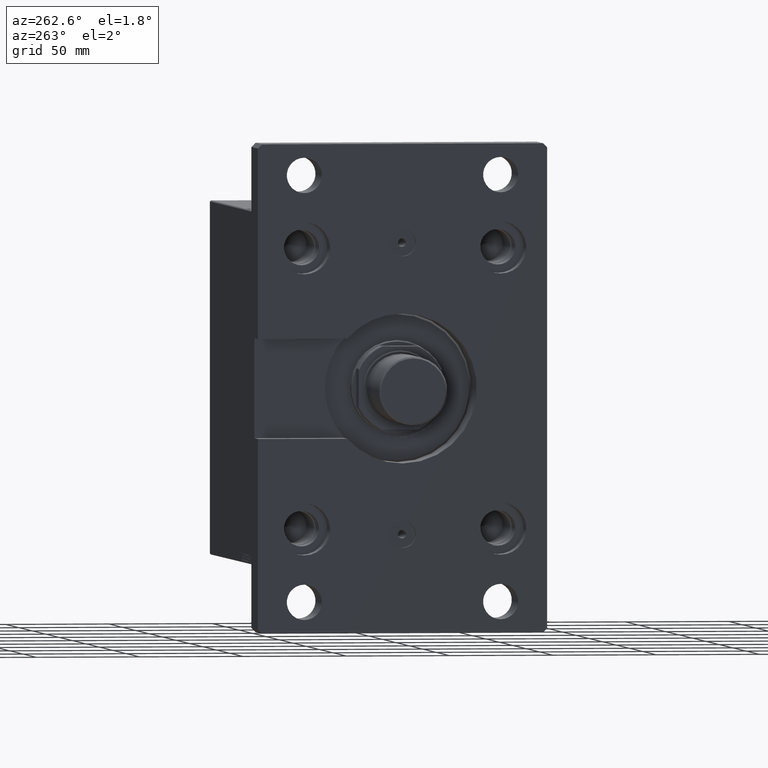
[diagram: clean part render]
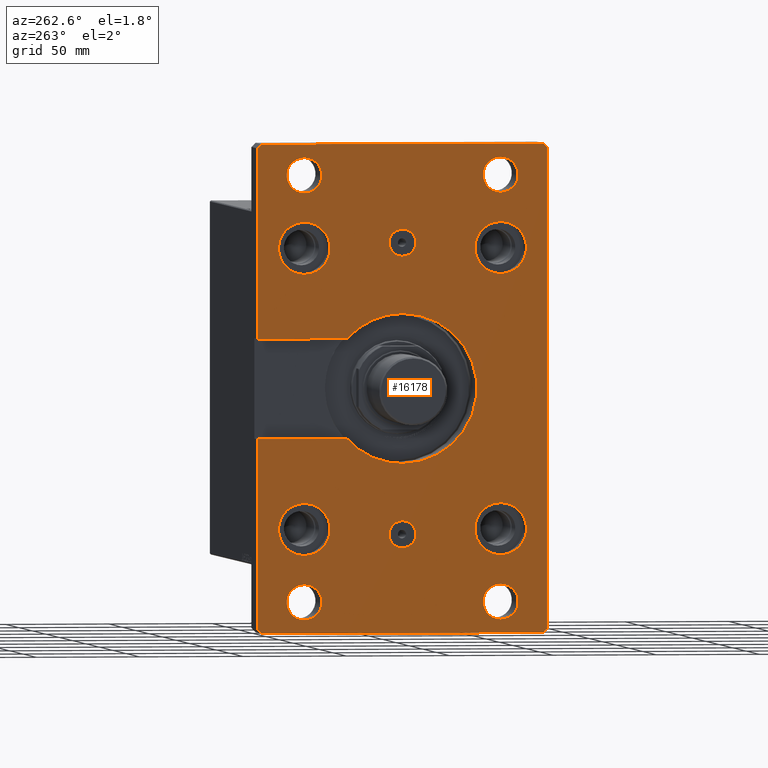
[diagram: same view with one face highlighted and labeled with its STEP entity id]
A machine part, auxiliary view. The second image highlights one B-rep face of the part: STEP entity #16178.
In plain terms, the highlighted planar face has unit normal (-1, 0, 0).
Its self-contained STEP definition (entity closure, byte-faithful):
#265 = LINE ( 'NONE', #15077, #33046 ) ;
#306 = LINE ( 'NONE', #26238, #8871 ) ;
#308 = DIRECTION ( 'NONE',  ( -3.965082230804130220E-16, 1.000000000000000000, -0.000000000000000000 ) ) ;
#411 = DIRECTION ( 'NONE',  ( 0.000000000000000000, 0.000000000000000000, 1.000000000000000000 ) ) ;
#446 = CARTESIAN_POINT ( 'NONE',  ( -80.00000000000000000, -47.50000000000000000, 24.00000000000000000 ) ) ;
#546 = CARTESIAN_POINT ( 'NONE',  ( 117.4999999999999858, 70.00000000000000000, 24.00000000000000000 ) ) ;
#554 = EDGE_CURVE ( 'NONE', #45017, #11655, #18734, .T. ) ;
#855 = AXIS2_PLACEMENT_3D ( 'NONE', #2356, #12815, #19841 ) ;
#973 = CARTESIAN_POINT ( 'NONE',  ( -70.00000000000000000, 0.000000000000000000, 24.00000000000000000 ) ) ;
#982 = CIRCLE ( 'NONE', #23412, 8.499999999999992895 ) ;
#1465 = CARTESIAN_POINT ( 'NONE',  ( -70.00000000000000000, 0.000000000000000000, 24.00000000000000000 ) ) ;
#1836 = DIRECTION ( 'NONE',  ( -0.7071067811865474617, -0.7071067811865474617, -0.000000000000000000 ) ) ;
#2017 = LINE ( 'NONE', #12950, #7054 ) ;
#2057 = FACE_BOUND ( 'NONE', #38197, .T. ) ;
#2175 = EDGE_CURVE ( 'NONE', #10622, #44782, #7720, .T. ) ;
#2296 = FACE_BOUND ( 'NONE', #35320, .T. ) ;
#2302 = CARTESIAN_POINT ( 'NONE',  ( -63.50000000000000000, 0.000000000000000000, 24.00000000000000000 ) ) ;
#2356 = CARTESIAN_POINT ( 'NONE',  ( -67.50000000000000000, -47.50000000000000000, 24.00000000000000000 ) ) ;
#2394 = VERTEX_POINT ( 'NONE', #446 ) ;
#2750 = CARTESIAN_POINT ( 'NONE',  ( 0.000000000000000000, 0.000000000000000000, 24.00000000000000000 ) ) ;
#2954 = DIRECTION ( 'NONE',  ( -0.7071067811865401342, 0.7071067811865549002, -0.000000000000000000 ) ) ;
#3041 = EDGE_CURVE ( 'NONE', #39036, #33081, #11492, .T. ) ;
#3063 = CARTESIAN_POINT ( 'NONE',  ( -117.5000000000000000, -70.00000000000000000, 24.00000000000000000 ) ) ;
#3593 = CIRCLE ( 'NONE', #19167, 12.49999999999999645 ) ;
#3726 = DIRECTION ( 'NONE',  ( 1.000000000000000000, 0.000000000000000000, 0.000000000000000000 ) ) ;
#3753 = EDGE_LOOP ( 'NONE', ( #40631, #8618 ) ) ;
#4460 = VECTOR ( 'NONE', #34371, 1000.000000000000114 ) ;
#4619 = AXIS2_PLACEMENT_3D ( 'NONE', #973, #27154, #15544 ) ;
#4686 = CARTESIAN_POINT ( 'NONE',  ( -24.00000000000000000, 69.99999999999998579, 24.00000000000000000 ) ) ;
#5031 = AXIS2_PLACEMENT_3D ( 'NONE', #42918, #9917, #6033 ) ;
#5173 = VERTEX_POINT ( 'NONE', #14876 ) ;
#5925 = VERTEX_POINT ( 'NONE', #22971 ) ;
#6033 = DIRECTION ( 'NONE',  ( 1.000000000000000000, 0.000000000000000000, 0.000000000000000000 ) ) ;
#6053 = ORIENTED_EDGE ( 'NONE', *, *, #10064, .F. ) ;
#6080 = VERTEX_POINT ( 'NONE', #4686 ) ;
#6172 = VERTEX_POINT ( 'NONE', #25773 ) ;
#6189 = PLANE ( 'NONE',  #25078 ) ;
#6217 = DIRECTION ( 'NONE',  ( 1.000000000000000000, 0.000000000000000000, 0.000000000000000000 ) ) ;
#6233 = AXIS2_PLACEMENT_3D ( 'NONE', #10897, #26153, #14783 ) ;
#6347 = DIRECTION ( 'NONE',  ( -0.000000000000000000, 0.000000000000000000, 1.000000000000000000 ) ) ;
#6370 = VERTEX_POINT ( 'NONE', #32048 ) ;
#6388 = EDGE_CURVE ( 'NONE', #17479, #34792, #34055, .T. ) ;
#6433 = CIRCLE ( 'NONE', #28120, 36.00000000000000000 ) ;
#6511 = CARTESIAN_POINT ( 'NONE',  ( -94.00000000000000000, -47.50000000000000000, 24.00000000000000000 ) ) ;
#6631 = CARTESIAN_POINT ( 'NONE',  ( 67.50000000000000000, 47.50000000000000000, 24.00000000000000000 ) ) ;
#6649 = AXIS2_PLACEMENT_3D ( 'NONE', #44952, #18984, #34252 ) ;
#6722 = EDGE_LOOP ( 'NONE', ( #28149, #29146 ) ) ;
#6910 = CARTESIAN_POINT ( 'NONE',  ( -115.5000000000000426, -70.00000000000000000, 24.00000000000000000 ) ) ;
#7026 = AXIS2_PLACEMENT_3D ( 'NONE', #26110, #37762, #25627 ) ;
#7054 = VECTOR ( 'NONE', #19743, 1000.000000000000000 ) ;
#7086 = AXIS2_PLACEMENT_3D ( 'NONE', #9967, #36157, #10682 ) ;
#7087 = FACE_BOUND ( 'NONE', #30674, .T. ) ;
#7283 = EDGE_CURVE ( 'NONE', #6172, #28848, #37204, .T. ) ;
#7372 = DIRECTION ( 'NONE',  ( -1.000000000000000000, -0.000000000000000000, -0.000000000000000000 ) ) ;
#7373 = ORIENTED_EDGE ( 'NONE', *, *, #8528, .F. ) ;
#7445 = DIRECTION ( 'NONE',  ( -0.000000000000000000, 0.000000000000000000, 1.000000000000000000 ) ) ;
#7720 = CIRCLE ( 'NONE', #28618, 6.500000000000005329 ) ;
#7852 = VECTOR ( 'NONE', #1836, 1000.000000000000114 ) ;
#7865 = AXIS2_PLACEMENT_3D ( 'NONE', #34116, #411, #14982 ) ;
#7914 = VERTEX_POINT ( 'NONE', #21271 ) ;
#8000 = CARTESIAN_POINT ( 'NONE',  ( -110.9999999999999858, 47.50000000000000000, 24.00000000000000000 ) ) ;
#8089 = VERTEX_POINT ( 'NONE', #34931 ) ;
#8150 = ORIENTED_EDGE ( 'NONE', *, *, #12388, .T. ) ;
#8384 = DIRECTION ( 'NONE',  ( 1.000000000000000000, 0.000000000000000000, 0.000000000000000000 ) ) ;
#8528 = EDGE_CURVE ( 'NONE', #2394, #33280, #29480, .T. ) ;
#8618 = ORIENTED_EDGE ( 'NONE', *, *, #29097, .F. ) ;
#8871 = VECTOR ( 'NONE', #42258, 1000.000000000000000 ) ;
#8970 = CIRCLE ( 'NONE', #6649, 8.499999999999992895 ) ;
#9042 = CARTESIAN_POINT ( 'NONE',  ( 117.5000000000000284, -68.00000000000000000, 24.00000000000000000 ) ) ;
#9120 = ORIENTED_EDGE ( 'NONE', *, *, #41008, .F. ) ;
#9334 = EDGE_LOOP ( 'NONE', ( #10481, #17367 ) ) ;
#9396 = EDGE_CURVE ( 'NONE', #36055, #23435, #23431, .T. ) ;
#9402 = CARTESIAN_POINT ( 'NONE',  ( -115.5000000000000142, 70.00000000000000000, 24.00000000000000000 ) ) ;
#9528 = CARTESIAN_POINT ( 'NONE',  ( 0.000000000000000000, 0.000000000000000000, 24.00000000000000000 ) ) ;
#9612 = EDGE_CURVE ( 'NONE', #6080, #42632, #2017, .T. ) ;
#9832 = CARTESIAN_POINT ( 'NONE',  ( 0.000000000000000000, 0.000000000000000000, 24.00000000000000000 ) ) ;
#9917 = DIRECTION ( 'NONE',  ( -0.000000000000000000, 0.000000000000000000, 1.000000000000000000 ) ) ;
#9967 = CARTESIAN_POINT ( 'NONE',  ( 102.5000000000000000, 47.50000000000000000, 24.00000000000000000 ) ) ;
#10015 = DIRECTION ( 'NONE',  ( 1.000000000000000000, 0.000000000000000000, 0.000000000000000000 ) ) ;
#10064 = EDGE_CURVE ( 'NONE', #42624, #44608, #11346, .T. ) ;
#10182 = ORIENTED_EDGE ( 'NONE', *, *, #9612, .F. ) ;
#10264 = CARTESIAN_POINT ( 'NONE',  ( 55.00000000000000711, 47.50000000000000000, 24.00000000000000000 ) ) ;
#10343 = EDGE_CURVE ( 'NONE', #34602, #8089, #23336, .T. ) ;
#10456 = AXIS2_PLACEMENT_3D ( 'NONE', #27387, #19643, #12611 ) ;
#10481 = ORIENTED_EDGE ( 'NONE', *, *, #7283, .F. ) ;
#10574 = DIRECTION ( 'NONE',  ( 0.000000000000000000, 0.000000000000000000, 1.000000000000000000 ) ) ;
#10582 = CARTESIAN_POINT ( 'NONE',  ( 92.75000000000041211, -92.74999999999977263, 24.00000000000000000 ) ) ;
#10622 = VERTEX_POINT ( 'NONE', #17044 ) ;
#10682 = DIRECTION ( 'NONE',  ( 1.000000000000000000, 0.000000000000000000, 0.000000000000000000 ) ) ;
#10897 = CARTESIAN_POINT ( 'NONE',  ( 102.5000000000000000, -47.50000000000000000, 24.00000000000000000 ) ) ;
#11011 = LINE ( 'NONE', #26504, #21419 ) ;
#11024 = CARTESIAN_POINT ( 'NONE',  ( -36.00000000000000000, 4.408728476930470856E-15, 24.00000000000000000 ) ) ;
#11035 = EDGE_CURVE ( 'NONE', #25785, #20208, #43525, .T. ) ;
#11059 = DIRECTION ( 'NONE',  ( 0.7071067811865451302, 0.7071067811865500152, -0.000000000000000000 ) ) ;
#11346 = LINE ( 'NONE', #26122, #41932 ) ;
#11361 = LINE ( 'NONE', #41677, #27845 ) ;
#11492 = CIRCLE ( 'NONE', #25421, 8.499999999999992895 ) ;
#11560 = DIRECTION ( 'NONE',  ( 1.000000000000000000, 0.000000000000000000, 0.000000000000000000 ) ) ;
#11655 = VERTEX_POINT ( 'NONE', #34005 ) ;
#11920 = DIRECTION ( 'NONE',  ( 1.000000000000000000, 0.000000000000000000, 0.000000000000000000 ) ) ;
#12212 = EDGE_LOOP ( 'NONE', ( #37628, #7373 ) ) ;
#12326 = ORIENTED_EDGE ( 'NONE', *, *, #13260, .F. ) ;
#12354 = CARTESIAN_POINT ( 'NONE',  ( 94.00000000000000000, 47.50000000000000000, 24.00000000000000000 ) ) ;
#12388 = EDGE_CURVE ( 'NONE', #13503, #7914, #43824, .T. ) ;
#12395 = AXIS2_PLACEMENT_3D ( 'NONE', #39568, #6347, #15306 ) ;
#12611 = DIRECTION ( 'NONE',  ( 1.000000000000000000, 0.000000000000000000, 0.000000000000000000 ) ) ;
#12721 = DIRECTION ( 'NONE',  ( 1.000000000000000000, 0.000000000000000000, 0.000000000000000000 ) ) ;
#12736 = CIRCLE ( 'NONE', #5031, 8.499999999999992895 ) ;
#12815 = DIRECTION ( 'NONE',  ( 0.000000000000000000, 0.000000000000000000, 1.000000000000000000 ) ) ;
#12950 = CARTESIAN_POINT ( 'NONE',  ( -24.00000000000000000, 26.83281572999747411, 24.00000000000000000 ) ) ;
#12974 = ORIENTED_EDGE ( 'NONE', *, *, #17262, .F. ) ;
#13260 = EDGE_CURVE ( 'NONE', #20208, #25785, #982, .T. ) ;
#13477 = FACE_OUTER_BOUND ( 'NONE', #19006, .T. ) ;
#13503 = VERTEX_POINT ( 'NONE', #6910 ) ;
#13673 = DIRECTION ( 'NONE',  ( 1.000000000000000000, 0.000000000000000000, 0.000000000000000000 ) ) ;
#13854 = DIRECTION ( 'NONE',  ( 0.000000000000000000, 0.000000000000000000, 1.000000000000000000 ) ) ;
#13873 = EDGE_CURVE ( 'NONE', #28372, #39884, #6433, .T. ) ;
#14701 = VERTEX_POINT ( 'NONE', #10264 ) ;
#14783 = DIRECTION ( 'NONE',  ( 1.000000000000000000, 0.000000000000000000, 0.000000000000000000 ) ) ;
#14876 = CARTESIAN_POINT ( 'NONE',  ( 80.00000000000000000, 47.50000000000000000, 24.00000000000000000 ) ) ;
#14982 = DIRECTION ( 'NONE',  ( 1.000000000000000000, 0.000000000000000000, 0.000000000000000000 ) ) ;
#15077 = CARTESIAN_POINT ( 'NONE',  ( 92.75000000000122213, 92.74999999999927525, 24.00000000000000000 ) ) ;
#15100 = AXIS2_PLACEMENT_3D ( 'NONE', #15892, #22670, #8384 ) ;
#15225 = ORIENTED_EDGE ( 'NONE', *, *, #45184, .T. ) ;
#15265 = EDGE_LOOP ( 'NONE', ( #9120, #18643 ) ) ;
#15306 = DIRECTION ( 'NONE',  ( 1.000000000000000000, 0.000000000000000000, 0.000000000000000000 ) ) ;
#15544 = DIRECTION ( 'NONE',  ( 1.000000000000000000, 0.000000000000000000, 0.000000000000000000 ) ) ;
#15548 = DIRECTION ( 'NONE',  ( -0.000000000000000000, 0.000000000000000000, 1.000000000000000000 ) ) ;
#15788 = DIRECTION ( 'NONE',  ( 1.000000000000000000, 0.000000000000000000, 0.000000000000000000 ) ) ;
#15854 = CARTESIAN_POINT ( 'NONE',  ( 80.00000000000000000, -47.50000000000000000, 24.00000000000000000 ) ) ;
#15892 = CARTESIAN_POINT ( 'NONE',  ( 67.50000000000000000, 47.50000000000000000, 24.00000000000000000 ) ) ;
#16035 = ORIENTED_EDGE ( 'NONE', *, *, #45778, .T. ) ;
#16037 = EDGE_CURVE ( 'NONE', #44782, #10622, #26525, .T. ) ;
#16178 = ADVANCED_FACE ( 'NONE', ( #46459, #42825, #29388, #2057, #28244, #16848, #40308, #2296, #7087, #17087, #13477 ), #6189, .T. ) ;
#16299 = CIRCLE ( 'NONE', #6233, 8.499999999999992895 ) ;
#16586 = DIRECTION ( 'NONE',  ( -0.000000000000000000, 0.000000000000000000, 1.000000000000000000 ) ) ;
#16848 = FACE_BOUND ( 'NONE', #3753, .T. ) ;
#17044 = CARTESIAN_POINT ( 'NONE',  ( 63.50000000000000000, 7.960204194457791533E-16, 24.00000000000000000 ) ) ;
#17087 = FACE_BOUND ( 'NONE', #9334, .T. ) ;
#17163 = CARTESIAN_POINT ( 'NONE',  ( 115.4999999999999574, 70.00000000000000000, 24.00000000000000000 ) ) ;
#17262 = EDGE_CURVE ( 'NONE', #5173, #14701, #46688, .T. ) ;
#17363 = ORIENTED_EDGE ( 'NONE', *, *, #40317, .F. ) ;
#17364 = CIRCLE ( 'NONE', #43742, 36.00000000000000000 ) ;
#17367 = ORIENTED_EDGE ( 'NONE', *, *, #43918, .F. ) ;
#17479 = VERTEX_POINT ( 'NONE', #35365 ) ;
#17721 = CARTESIAN_POINT ( 'NONE',  ( -117.5000000000000000, -68.00000000000005684, 24.00000000000000000 ) ) ;
#18279 = CARTESIAN_POINT ( 'NONE',  ( -102.5000000000000000, 47.50000000000000000, 24.00000000000000000 ) ) ;
#18643 = ORIENTED_EDGE ( 'NONE', *, *, #47691, .F. ) ;
#18734 = LINE ( 'NONE', #546, #27020 ) ;
#18984 = DIRECTION ( 'NONE',  ( -0.000000000000000000, 0.000000000000000000, 1.000000000000000000 ) ) ;
#19006 = EDGE_LOOP ( 'NONE', ( #46057, #15225, #16035, #6053, #45863, #46267, #34462, #10182, #38240, #32282, #38673, #40350, #8150, #44811 ) ) ;
#19167 = AXIS2_PLACEMENT_3D ( 'NONE', #40451, #13854, #42973 ) ;
#19361 = CARTESIAN_POINT ( 'NONE',  ( -24.00000000000000000, 26.83281572999747411, 24.00000000000000000 ) ) ;
#19643 = DIRECTION ( 'NONE',  ( 0.000000000000000000, 0.000000000000000000, 1.000000000000000000 ) ) ;
#19743 = DIRECTION ( 'NONE',  ( -0.000000000000000000, -1.000000000000000000, -0.000000000000000000 ) ) ;
#19841 = DIRECTION ( 'NONE',  ( 1.000000000000000000, 0.000000000000000000, 0.000000000000000000 ) ) ;
#19909 = CARTESIAN_POINT ( 'NONE',  ( -117.5000000000000142, 68.00000000000000000, 24.00000000000000000 ) ) ;
#20208 = VERTEX_POINT ( 'NONE', #12354 ) ;
#20677 = AXIS2_PLACEMENT_3D ( 'NONE', #1465, #33975, #11920 ) ;
#21271 = CARTESIAN_POINT ( 'NONE',  ( 115.5000000000000426, -70.00000000000000000, 24.00000000000000000 ) ) ;
#21320 = DIRECTION ( 'NONE',  ( 0.000000000000000000, 0.000000000000000000, 1.000000000000000000 ) ) ;
#21419 = VECTOR ( 'NONE', #7372, 1000.000000000000000 ) ;
#21935 = CIRCLE ( 'NONE', #38969, 36.00000000000000000 ) ;
#22142 = DIRECTION ( 'NONE',  ( -0.000000000000000000, 0.000000000000000000, 1.000000000000000000 ) ) ;
#22422 = VERTEX_POINT ( 'NONE', #15854 ) ;
#22670 = DIRECTION ( 'NONE',  ( 0.000000000000000000, 0.000000000000000000, 1.000000000000000000 ) ) ;
#22698 = CARTESIAN_POINT ( 'NONE',  ( 102.5000000000000000, 47.50000000000000000, 24.00000000000000000 ) ) ;
#22971 = CARTESIAN_POINT ( 'NONE',  ( 55.00000000000000711, -47.50000000000000000, 24.00000000000000000 ) ) ;
#23153 = CARTESIAN_POINT ( 'NONE',  ( 24.00000000000000000, 69.99999999999998579, 24.00000000000000000 ) ) ;
#23283 = CIRCLE ( 'NONE', #855, 12.49999999999999645 ) ;
#23336 = CIRCLE ( 'NONE', #45838, 12.49999999999999645 ) ;
#23373 = CARTESIAN_POINT ( 'NONE',  ( -55.00000000000000711, 47.50000000000000000, 24.00000000000000000 ) ) ;
#23412 = AXIS2_PLACEMENT_3D ( 'NONE', #22698, #7445, #11560 ) ;
#23431 = LINE ( 'NONE', #41891, #7852 ) ;
#23435 = VERTEX_POINT ( 'NONE', #19909 ) ;
#24114 = EDGE_CURVE ( 'NONE', #6080, #36055, #11361, .T. ) ;
#24464 = DIRECTION ( 'NONE',  ( 1.000000000000000000, 0.000000000000000000, 0.000000000000000000 ) ) ;
#24601 = DIRECTION ( 'NONE',  ( -0.000000000000000000, 0.000000000000000000, 1.000000000000000000 ) ) ;
#24799 = AXIS2_PLACEMENT_3D ( 'NONE', #18279, #22142, #3726 ) ;
#24877 = EDGE_CURVE ( 'NONE', #6370, #37351, #42597, .T. ) ;
#25078 = AXIS2_PLACEMENT_3D ( 'NONE', #9832, #24601, #47841 ) ;
#25421 = AXIS2_PLACEMENT_3D ( 'NONE', #38795, #15548, #15788 ) ;
#25627 = DIRECTION ( 'NONE',  ( 1.000000000000000000, 0.000000000000000000, 0.000000000000000000 ) ) ;
#25693 = VECTOR ( 'NONE', #6217, 1000.000000000000000 ) ;
#25773 = CARTESIAN_POINT ( 'NONE',  ( -94.00000000000000000, 47.50000000000000000, 24.00000000000000000 ) ) ;
#25785 = VERTEX_POINT ( 'NONE', #43784 ) ;
#25940 = CIRCLE ( 'NONE', #10456, 12.49999999999999645 ) ;
#26088 = EDGE_CURVE ( 'NONE', #34792, #17479, #16299, .T. ) ;
#26110 = CARTESIAN_POINT ( 'NONE',  ( -67.50000000000000000, -47.50000000000000000, 24.00000000000000000 ) ) ;
#26122 = CARTESIAN_POINT ( 'NONE',  ( 24.00000000000000000, 69.99999999999998579, 24.00000000000000000 ) ) ;
#26153 = DIRECTION ( 'NONE',  ( -0.000000000000000000, 0.000000000000000000, 1.000000000000000000 ) ) ;
#26238 = CARTESIAN_POINT ( 'NONE',  ( -117.5000000000000142, 70.00000000000000000, 24.00000000000000000 ) ) ;
#26504 = CARTESIAN_POINT ( 'NONE',  ( -117.5000000000000142, 70.00000000000000000, 24.00000000000000000 ) ) ;
#26525 = CIRCLE ( 'NONE', #31158, 6.500000000000005329 ) ;
#26818 = CARTESIAN_POINT ( 'NONE',  ( 70.00000000000000000, 0.000000000000000000, 24.00000000000000000 ) ) ;
#27020 = VECTOR ( 'NONE', #308, 1000.000000000000000 ) ;
#27154 = DIRECTION ( 'NONE',  ( 0.000000000000000000, 0.000000000000000000, 1.000000000000000000 ) ) ;
#27387 = CARTESIAN_POINT ( 'NONE',  ( 67.50000000000000000, -47.50000000000000000, 24.00000000000000000 ) ) ;
#27845 = VECTOR ( 'NONE', #38260, 1000.000000000000000 ) ;
#27896 = EDGE_CURVE ( 'NONE', #33280, #2394, #23283, .T. ) ;
#28101 = ORIENTED_EDGE ( 'NONE', *, *, #26088, .F. ) ;
#28120 = AXIS2_PLACEMENT_3D ( 'NONE', #9528, #28190, #10015 ) ;
#28149 = ORIENTED_EDGE ( 'NONE', *, *, #16037, .F. ) ;
#28190 = DIRECTION ( 'NONE',  ( -0.000000000000000000, 0.000000000000000000, 1.000000000000000000 ) ) ;
#28206 = DIRECTION ( 'NONE',  ( -0.000000000000000000, 0.000000000000000000, 1.000000000000000000 ) ) ;
#28244 = FACE_BOUND ( 'NONE', #15265, .T. ) ;
#28372 = VERTEX_POINT ( 'NONE', #11024 ) ;
#28618 = AXIS2_PLACEMENT_3D ( 'NONE', #39757, #21320, #24464 ) ;
#28695 = EDGE_LOOP ( 'NONE', ( #41931, #36966 ) ) ;
#28848 = VERTEX_POINT ( 'NONE', #8000 ) ;
#29097 = EDGE_CURVE ( 'NONE', #8089, #34602, #41944, .T. ) ;
#29146 = ORIENTED_EDGE ( 'NONE', *, *, #2175, .F. ) ;
#29388 = FACE_BOUND ( 'NONE', #12212, .T. ) ;
#29480 = CIRCLE ( 'NONE', #7026, 12.49999999999999645 ) ;
#30674 = EDGE_LOOP ( 'NONE', ( #17363, #32792 ) ) ;
#30702 = DIRECTION ( 'NONE',  ( 0.000000000000000000, 0.000000000000000000, 1.000000000000000000 ) ) ;
#30714 = CARTESIAN_POINT ( 'NONE',  ( -55.00000000000000711, -47.50000000000000000, 24.00000000000000000 ) ) ;
#31158 = AXIS2_PLACEMENT_3D ( 'NONE', #26818, #30702, #42118 ) ;
#31180 = ORIENTED_EDGE ( 'NONE', *, *, #11035, .F. ) ;
#31371 = CARTESIAN_POINT ( 'NONE',  ( 0.000000000000000000, 0.000000000000000000, 24.00000000000000000 ) ) ;
#31546 = CARTESIAN_POINT ( 'NONE',  ( 110.9999999999999858, -47.50000000000000000, 24.00000000000000000 ) ) ;
#31813 = EDGE_LOOP ( 'NONE', ( #31180, #12326 ) ) ;
#32048 = CARTESIAN_POINT ( 'NONE',  ( -76.50000000000001421, 7.960204194457791533E-16, 24.00000000000000000 ) ) ;
#32084 = DIRECTION ( 'NONE',  ( 0.000000000000000000, 0.000000000000000000, 1.000000000000000000 ) ) ;
#32152 = CARTESIAN_POINT ( 'NONE',  ( -67.50000000000000000, 47.50000000000000000, 24.00000000000000000 ) ) ;
#32282 = ORIENTED_EDGE ( 'NONE', *, *, #9396, .T. ) ;
#32792 = ORIENTED_EDGE ( 'NONE', *, *, #3041, .F. ) ;
#33046 = VECTOR ( 'NONE', #2954, 1000.000000000000000 ) ;
#33081 = VERTEX_POINT ( 'NONE', #6511 ) ;
#33280 = VERTEX_POINT ( 'NONE', #30714 ) ;
#33703 = EDGE_CURVE ( 'NONE', #39884, #42624, #21935, .T. ) ;
#33975 = DIRECTION ( 'NONE',  ( 0.000000000000000000, 0.000000000000000000, 1.000000000000000000 ) ) ;
#34005 = CARTESIAN_POINT ( 'NONE',  ( 117.4999999999999858, 68.00000000000000000, 24.00000000000000000 ) ) ;
#34055 = CIRCLE ( 'NONE', #12395, 8.499999999999992895 ) ;
#34116 = CARTESIAN_POINT ( 'NONE',  ( -67.50000000000000000, 47.50000000000000000, 24.00000000000000000 ) ) ;
#34252 = DIRECTION ( 'NONE',  ( 1.000000000000000000, 0.000000000000000000, 0.000000000000000000 ) ) ;
#34371 = DIRECTION ( 'NONE',  ( 0.7071067811865474617, -0.7071067811865474617, 0.000000000000000000 ) ) ;
#34462 = ORIENTED_EDGE ( 'NONE', *, *, #39577, .F. ) ;
#34602 = VERTEX_POINT ( 'NONE', #23373 ) ;
#34792 = VERTEX_POINT ( 'NONE', #31546 ) ;
#34911 = VERTEX_POINT ( 'NONE', #17721 ) ;
#34931 = CARTESIAN_POINT ( 'NONE',  ( -80.00000000000000000, 47.50000000000000000, 24.00000000000000000 ) ) ;
#35005 = ORIENTED_EDGE ( 'NONE', *, *, #40717, .F. ) ;
#35082 = ORIENTED_EDGE ( 'NONE', *, *, #6388, .F. ) ;
#35320 = EDGE_LOOP ( 'NONE', ( #28101, #35082 ) ) ;
#35365 = CARTESIAN_POINT ( 'NONE',  ( 94.00000000000000000, -47.50000000000000000, 24.00000000000000000 ) ) ;
#35393 = CIRCLE ( 'NONE', #20677, 6.500000000000005329 ) ;
#36055 = VERTEX_POINT ( 'NONE', #9402 ) ;
#36157 = DIRECTION ( 'NONE',  ( -0.000000000000000000, 0.000000000000000000, 1.000000000000000000 ) ) ;
#36966 = ORIENTED_EDGE ( 'NONE', *, *, #24877, .F. ) ;
#37184 = CARTESIAN_POINT ( 'NONE',  ( 76.50000000000001421, 0.000000000000000000, 24.00000000000000000 ) ) ;
#37204 = CIRCLE ( 'NONE', #24799, 8.499999999999992895 ) ;
#37292 = DIRECTION ( 'NONE',  ( -0.000000000000000000, 1.000000000000000000, -0.000000000000000000 ) ) ;
#37351 = VERTEX_POINT ( 'NONE', #2302 ) ;
#37628 = ORIENTED_EDGE ( 'NONE', *, *, #27896, .F. ) ;
#37762 = DIRECTION ( 'NONE',  ( 0.000000000000000000, 0.000000000000000000, 1.000000000000000000 ) ) ;
#37799 = CARTESIAN_POINT ( 'NONE',  ( 24.00000000000000000, 26.83281572999747411, 24.00000000000000000 ) ) ;
#38197 = EDGE_LOOP ( 'NONE', ( #12974, #35005 ) ) ;
#38240 = ORIENTED_EDGE ( 'NONE', *, *, #24114, .T. ) ;
#38260 = DIRECTION ( 'NONE',  ( -1.000000000000000000, -0.000000000000000000, -0.000000000000000000 ) ) ;
#38673 = ORIENTED_EDGE ( 'NONE', *, *, #39898, .T. ) ;
#38795 = CARTESIAN_POINT ( 'NONE',  ( -102.5000000000000000, -47.50000000000000000, 24.00000000000000000 ) ) ;
#38969 = AXIS2_PLACEMENT_3D ( 'NONE', #2750, #28206, #46902 ) ;
#39036 = VERTEX_POINT ( 'NONE', #43927 ) ;
#39568 = CARTESIAN_POINT ( 'NONE',  ( 102.5000000000000000, -47.50000000000000000, 24.00000000000000000 ) ) ;
#39577 = EDGE_CURVE ( 'NONE', #42632, #28372, #17364, .T. ) ;
#39757 = CARTESIAN_POINT ( 'NONE',  ( 70.00000000000000000, 0.000000000000000000, 24.00000000000000000 ) ) ;
#39880 = VECTOR ( 'NONE', #11059, 1000.000000000000114 ) ;
#39884 = VERTEX_POINT ( 'NONE', #40576 ) ;
#39898 = EDGE_CURVE ( 'NONE', #23435, #34911, #306, .T. ) ;
#40308 = FACE_BOUND ( 'NONE', #31813, .T. ) ;
#40317 = EDGE_CURVE ( 'NONE', #33081, #39036, #12736, .T. ) ;
#40350 = ORIENTED_EDGE ( 'NONE', *, *, #47802, .T. ) ;
#40400 = LINE ( 'NONE', #10582, #39880 ) ;
#40451 = CARTESIAN_POINT ( 'NONE',  ( 67.50000000000000000, -47.50000000000000000, 24.00000000000000000 ) ) ;
#40491 = AXIS2_PLACEMENT_3D ( 'NONE', #6631, #32084, #13673 ) ;
#40576 = CARTESIAN_POINT ( 'NONE',  ( 36.00000000000000000, 0.000000000000000000, 24.00000000000000000 ) ) ;
#40598 = EDGE_CURVE ( 'NONE', #7914, #45017, #40400, .T. ) ;
#40631 = ORIENTED_EDGE ( 'NONE', *, *, #10343, .F. ) ;
#40717 = EDGE_CURVE ( 'NONE', #14701, #5173, #45332, .T. ) ;
#41008 = EDGE_CURVE ( 'NONE', #22422, #5925, #25940, .T. ) ;
#41183 = CARTESIAN_POINT ( 'NONE',  ( -92.75000000000002842, -92.75000000000002842, 24.00000000000000000 ) ) ;
#41677 = CARTESIAN_POINT ( 'NONE',  ( -117.5000000000000142, 70.00000000000000000, 24.00000000000000000 ) ) ;
#41891 = CARTESIAN_POINT ( 'NONE',  ( -92.75000000000002842, 92.75000000000002842, 24.00000000000000000 ) ) ;
#41931 = ORIENTED_EDGE ( 'NONE', *, *, #46174, .F. ) ;
#41932 = VECTOR ( 'NONE', #37292, 1000.000000000000000 ) ;
#41944 = CIRCLE ( 'NONE', #7865, 12.49999999999999645 ) ;
#42118 = DIRECTION ( 'NONE',  ( 1.000000000000000000, 0.000000000000000000, 0.000000000000000000 ) ) ;
#42258 = DIRECTION ( 'NONE',  ( 1.982541115402065110E-16, -1.000000000000000000, 0.000000000000000000 ) ) ;
#42597 = CIRCLE ( 'NONE', #4619, 6.500000000000005329 ) ;
#42624 = VERTEX_POINT ( 'NONE', #37799 ) ;
#42632 = VERTEX_POINT ( 'NONE', #19361 ) ;
#42825 = FACE_BOUND ( 'NONE', #6722, .T. ) ;
#42918 = CARTESIAN_POINT ( 'NONE',  ( -102.5000000000000000, -47.50000000000000000, 24.00000000000000000 ) ) ;
#42973 = DIRECTION ( 'NONE',  ( 1.000000000000000000, 0.000000000000000000, 0.000000000000000000 ) ) ;
#43525 = CIRCLE ( 'NONE', #7086, 8.499999999999992895 ) ;
#43742 = AXIS2_PLACEMENT_3D ( 'NONE', #31371, #16586, #12721 ) ;
#43784 = CARTESIAN_POINT ( 'NONE',  ( 110.9999999999999858, 47.50000000000000000, 24.00000000000000000 ) ) ;
#43824 = LINE ( 'NONE', #3063, #25693 ) ;
#43918 = EDGE_CURVE ( 'NONE', #28848, #6172, #8970, .T. ) ;
#43927 = CARTESIAN_POINT ( 'NONE',  ( -110.9999999999999858, -47.50000000000000000, 24.00000000000000000 ) ) ;
#44608 = VERTEX_POINT ( 'NONE', #23153 ) ;
#44782 = VERTEX_POINT ( 'NONE', #37184 ) ;
#44811 = ORIENTED_EDGE ( 'NONE', *, *, #40598, .T. ) ;
#44830 = LINE ( 'NONE', #41183, #4460 ) ;
#44952 = CARTESIAN_POINT ( 'NONE',  ( -102.5000000000000000, 47.50000000000000000, 24.00000000000000000 ) ) ;
#45017 = VERTEX_POINT ( 'NONE', #9042 ) ;
#45184 = EDGE_CURVE ( 'NONE', #11655, #47016, #265, .T. ) ;
#45332 = CIRCLE ( 'NONE', #15100, 12.49999999999999645 ) ;
#45778 = EDGE_CURVE ( 'NONE', #47016, #44608, #11011, .T. ) ;
#45838 = AXIS2_PLACEMENT_3D ( 'NONE', #32152, #10574, #46968 ) ;
#45863 = ORIENTED_EDGE ( 'NONE', *, *, #33703, .F. ) ;
#46057 = ORIENTED_EDGE ( 'NONE', *, *, #554, .T. ) ;
#46174 = EDGE_CURVE ( 'NONE', #37351, #6370, #35393, .T. ) ;
#46267 = ORIENTED_EDGE ( 'NONE', *, *, #13873, .F. ) ;
#46459 = FACE_BOUND ( 'NONE', #28695, .T. ) ;
#46688 = CIRCLE ( 'NONE', #40491, 12.49999999999999645 ) ;
#46902 = DIRECTION ( 'NONE',  ( 1.000000000000000000, 0.000000000000000000, 0.000000000000000000 ) ) ;
#46968 = DIRECTION ( 'NONE',  ( 1.000000000000000000, 0.000000000000000000, 0.000000000000000000 ) ) ;
#47016 = VERTEX_POINT ( 'NONE', #17163 ) ;
#47691 = EDGE_CURVE ( 'NONE', #5925, #22422, #3593, .T. ) ;
#47802 = EDGE_CURVE ( 'NONE', #34911, #13503, #44830, .T. ) ;
#47841 = DIRECTION ( 'NONE',  ( 1.000000000000000000, 0.000000000000000000, 0.000000000000000000 ) ) ;